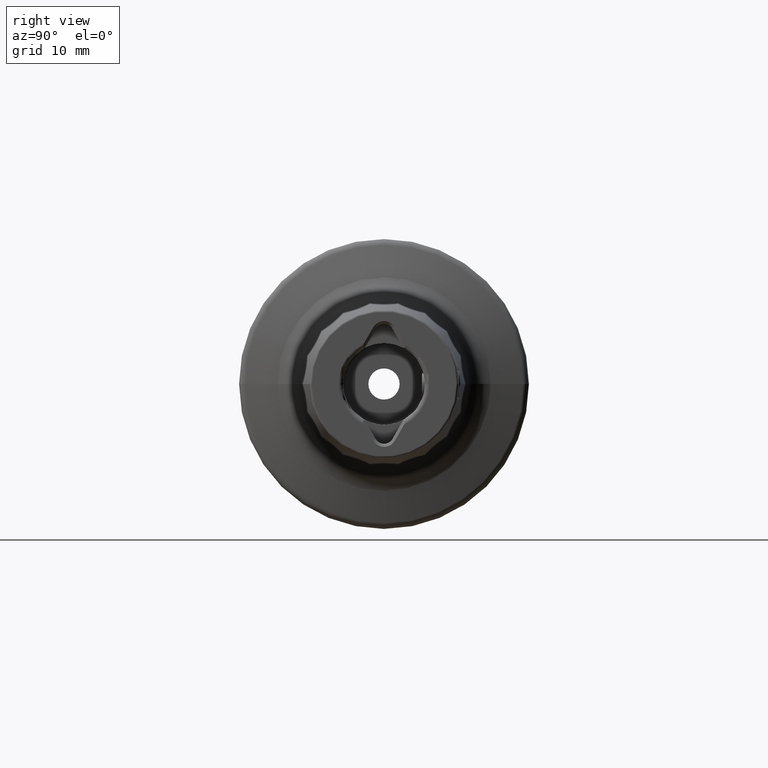
[diagram: clean part render]
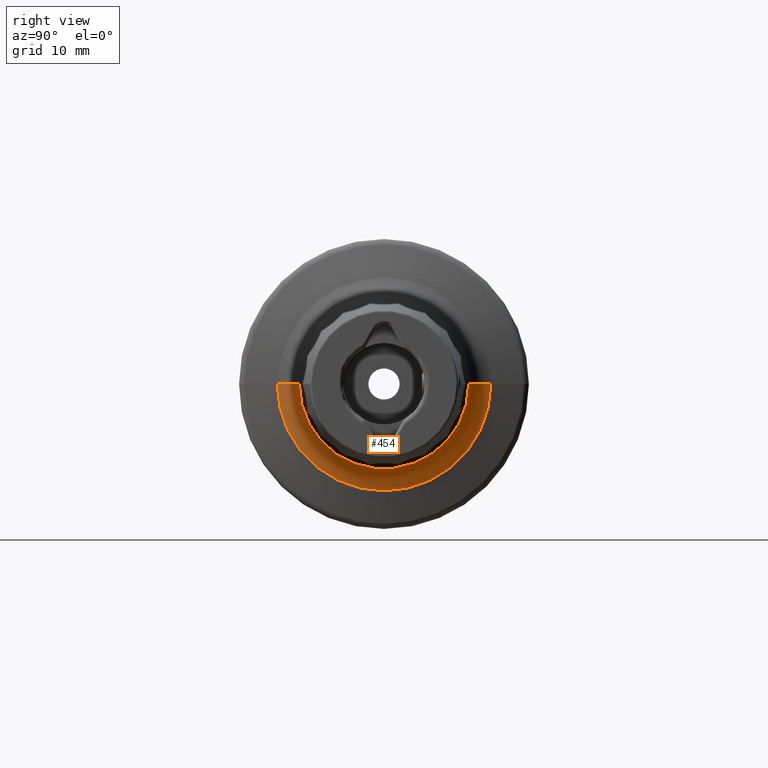
[diagram: same view with one face highlighted and labeled with its STEP entity id]
A machine part, right view. The second image highlights one B-rep face of the part: STEP entity #454.
In plain terms, the highlighted toroidal blend (fillet) surface has major radius 15.3998 mm and minor (blend) radius 4 mm.
Its self-contained STEP definition (entity closure, byte-faithful):
#49 = ORIENTED_EDGE ( 'NONE', *, *, #4885, .T. ) ;
#74 = ORIENTED_EDGE ( 'NONE', *, *, #4804, .F. ) ;
#81 = VERTEX_POINT ( 'NONE', #3462 ) ;
#89 = CARTESIAN_POINT ( 'NONE',  ( 15.23975200118170600, 15.39979253315422100, 0.0000000000000000000 ) ) ;
#179 = VERTEX_POINT ( 'NONE', #4233 ) ;
#208 = DIRECTION ( 'NONE',  ( -1.000000000000000000, 0.0000000000000000000, 0.0000000000000000000 ) ) ;
#274 = DIRECTION ( 'NONE',  ( -0.0000000000000000000, 0.0000000000000000000, -1.000000000000000000 ) ) ;
#301 = DIRECTION ( 'NONE',  ( 0.0000000000000000000, -1.000000000000000000, 0.0000000000000000000 ) ) ;
#320 = DIRECTION ( 'NONE',  ( 1.000000000000000000, 1.936199993903306300E-017, -0.0000000000000000000 ) ) ;
#381 = CARTESIAN_POINT ( 'NONE',  ( 15.10753867116067200, 9.139206423123587400E-016, 0.0000000000000000000 ) ) ;
#409 = CARTESIAN_POINT ( 'NONE',  ( 15.10753867116067200, -11.40197817586288100, 0.0000000000000000000 ) ) ;
#454 = ADVANCED_FACE ( 'NONE', ( #1972 ), #1977, .F. ) ;
#554 = DIRECTION ( 'NONE',  ( -1.000000000000000000, -1.936199993903306300E-017, 0.0000000000000000000 ) ) ;
#1065 = VERTEX_POINT ( 'NONE', #409 ) ;
#1503 = EDGE_CURVE ( 'NONE', #2800, #81, #4414, .T. ) ;
#1972 = FACE_OUTER_BOUND ( 'NONE', #2669, .T. ) ;
#1977 = TOROIDAL_SURFACE ( 'NONE', #4005, 15.39979253315421900, 4.000000000000000000 ) ;
#2049 = CIRCLE ( 'NONE', #4182, 14.36451635274414500 ) ;
#2221 = CIRCLE ( 'NONE', #4370, 4.000000000000000000 ) ;
#2365 = CIRCLE ( 'NONE', #3558, 11.40197817586288000 ) ;
#2371 = CARTESIAN_POINT ( 'NONE',  ( 11.37604869602543200, 8.416715336412876200E-016, 0.0000000000000000000 ) ) ;
#2650 = DIRECTION ( 'NONE',  ( 0.0000000000000000000, -1.000000000000000000, 0.0000000000000000000 ) ) ;
#2669 = EDGE_LOOP ( 'NONE', ( #74, #49, #4956, #4900 ) ) ;
#2800 = VERTEX_POINT ( 'NONE', #3125 ) ;
#2851 = DIRECTION ( 'NONE',  ( -1.936199993903306300E-017, 1.000000000000000000, 0.0000000000000000000 ) ) ;
#2913 = DIRECTION ( 'NONE',  ( 1.000000000000000000, 1.936199993903306300E-017, -0.0000000000000000000 ) ) ;
#2919 = CARTESIAN_POINT ( 'NONE',  ( 15.23975200118170600, 9.164805568001653500E-016, 0.0000000000000000000 ) ) ;
#3125 = CARTESIAN_POINT ( 'NONE',  ( 15.10753867116067200, 11.40197817586288100, 1.396339607701845400E-015 ) ) ;
#3462 = CARTESIAN_POINT ( 'NONE',  ( 11.37604869602543200, 14.36451635274414500, 2.028219333602856500E-015 ) ) ;
#3558 = AXIS2_PLACEMENT_3D ( 'NONE', #381, #320, #301 ) ;
#3635 = EDGE_CURVE ( 'NONE', #81, #179, #2049, .T. ) ;
#4005 = AXIS2_PLACEMENT_3D ( 'NONE', #2919, #2913, #2851 ) ;
#4133 = AXIS2_PLACEMENT_3D ( 'NONE', #89, #274, #208 ) ;
#4182 = AXIS2_PLACEMENT_3D ( 'NONE', #2371, #554, #2650 ) ;
#4233 = CARTESIAN_POINT ( 'NONE',  ( 11.37604869602543200, -14.36451635274414500, 0.0000000000000000000 ) ) ;
#4268 = CARTESIAN_POINT ( 'NONE',  ( 15.23975200118170600, -15.39979253315421700, 1.885930663326062500E-015 ) ) ;
#4367 = DIRECTION ( 'NONE',  ( 0.0000000000000000000, -1.000000000000000000, 1.224646799147353500E-016 ) ) ;
#4370 = AXIS2_PLACEMENT_3D ( 'NONE', #4268, #4567, #4367 ) ;
#4414 = CIRCLE ( 'NONE', #4133, 4.000000000000000000 ) ;
#4567 = DIRECTION ( 'NONE',  ( -2.371161125042808900E-033, 1.224646799147353200E-016, 1.000000000000000000 ) ) ;
#4804 = EDGE_CURVE ( 'NONE', #1065, #2800, #2365, .T. ) ;
#4885 = EDGE_CURVE ( 'NONE', #1065, #179, #2221, .T. ) ;
#4900 = ORIENTED_EDGE ( 'NONE', *, *, #1503, .F. ) ;
#4956 = ORIENTED_EDGE ( 'NONE', *, *, #3635, .F. ) ;